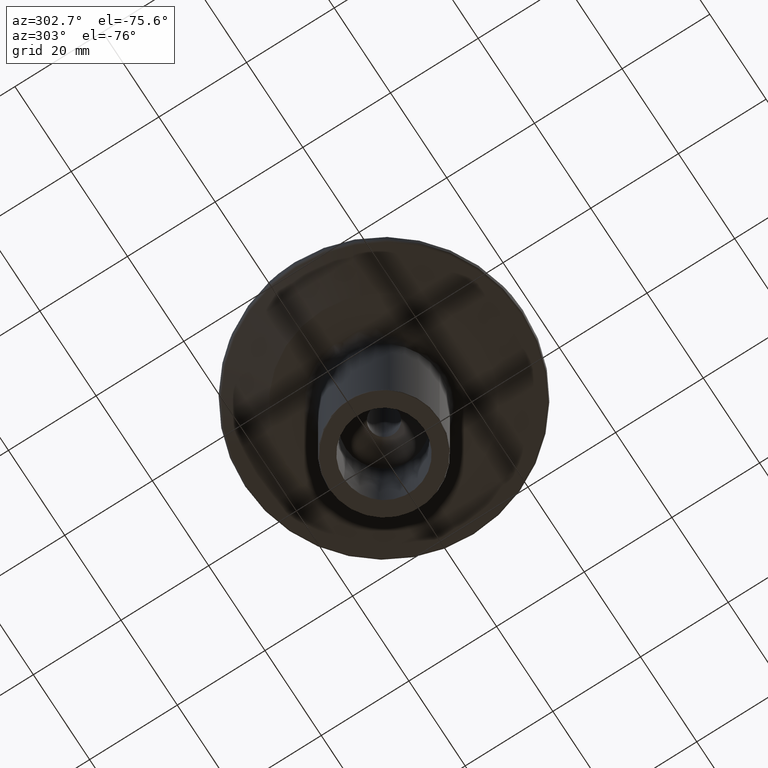
[diagram: clean part render]
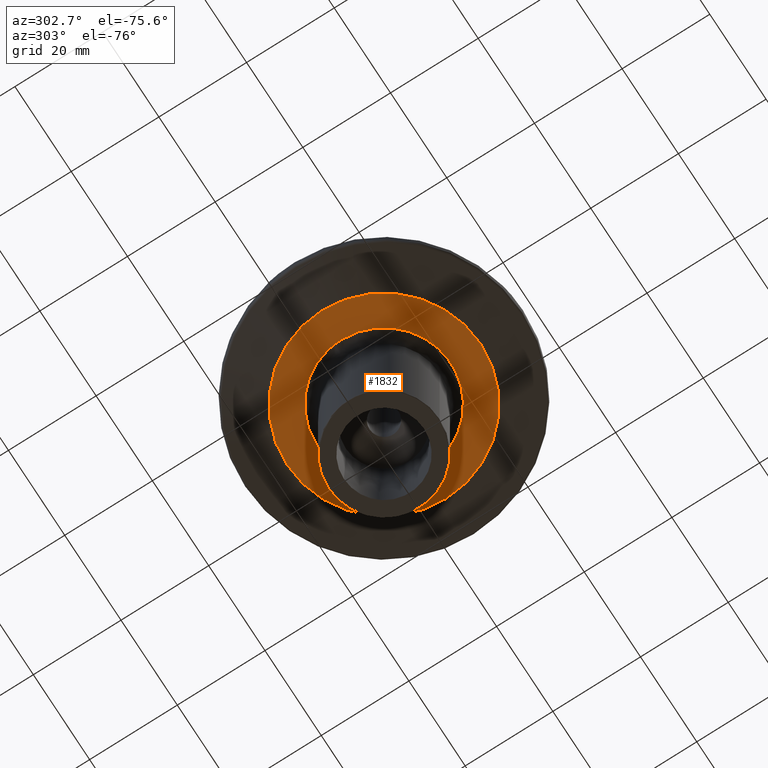
[diagram: same view with one face highlighted and labeled with its STEP entity id]
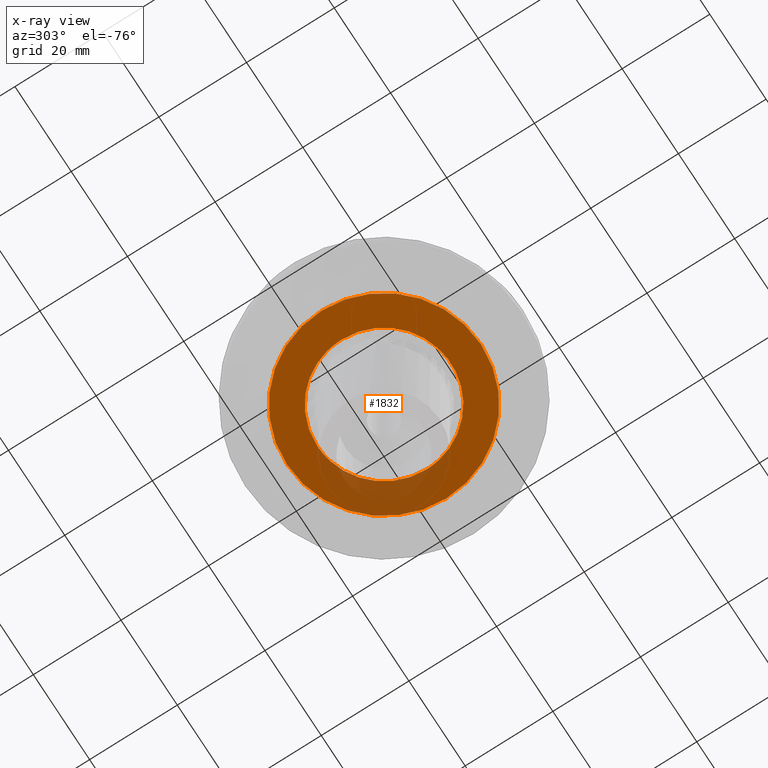
[diagram: x-ray of the same camera — body ghosted, the highlighted face saturated]
A machine part, auxiliary view. The second image highlights one B-rep face of the part: STEP entity #1832.
The next image is the same camera in x-ray: the body ghosted, the highlighted face saturated — about 20% of this face is hidden behind the body in this view.
In plain terms, the highlighted planar face has unit normal (0, 0, -1).
Its self-contained STEP definition (entity closure, byte-faithful):
#25 = CARTESIAN_POINT ( 'NONE',  ( -0.5597782072728204600, -0.2159907770818478800, 1.499999999999999100 ) ) ;
#51 = CARTESIAN_POINT ( 'NONE',  ( 0.5076767829546741100, 0.3197981980411839200, 1.499999999999999600 ) ) ;
#60 = CARTESIAN_POINT ( 'NONE',  ( 0.5587652151374763500, 0.2185927099198708100, 1.499999999999999100 ) ) ;
#66 = CARTESIAN_POINT ( 'NONE',  ( 0.5504157203243629200, 0.2396970855391391800, 1.499999999999999600 ) ) ;
#82 = CARTESIAN_POINT ( 'NONE',  ( 0.5696200264440894900, 0.1889507713051706800, 1.499999999999999600 ) ) ;
#94 = CARTESIAN_POINT ( 'NONE',  ( -0.09157096423425048500, -0.5932549521289787200, 1.499999999999999300 ) ) ;
#98 = CARTESIAN_POINT ( 'NONE',  ( -0.09473327015801585900, 0.5925325979306767000, 1.499999999999999800 ) ) ;
#100 = CARTESIAN_POINT ( 'NONE',  ( 0.2160879718433095000, -0.5597385924216987700, 1.499999999999999600 ) ) ;
#108 = CARTESIAN_POINT ( 'NONE',  ( -0.1179589487615707700, -0.5882992734584160400, 1.499999999999998700 ) ) ;
#109 = B_SPLINE_CURVE_WITH_KNOTS ( 'NONE', 3,
 ( #1979, #1235, #230, #2154, #239, #1568, #1578, #1354, #212, #411, #597, #432, #1772, #984, #25, #1178, #2343, #1954, #1362, #823, #221, #1963, #805, #2161, #995, #2178, #1068, #1266, #290, #1257, #1079, #517, #299, #882, #1441, #1857, #1848, #1640, #1666, #2253, #488, #2048, #1088, #680, #1062, #108, #1838, #1448, #1629, #94, #2236, #2039, #875, #1866, #1650, #2436, #891, #2429, #309, #2445, #1466, #672, #2246, #498, #1272, #127, #117, #316, #1658, #100, #700, #2056, #327, #708, #2031, #2064, #2226, #901, #2262, #2411, #1429, #479, #1828, #2421, #1250, #2278, #364, #1511, #1295, #718, #1280, #924, #2269, #2473, #1103, #909, #1504, #2093, #1699, #1113, #549, #369, #2285, #1677, #1314, #153, #531 ),
 .UNSPECIFIED., .F., .F.,
 ( 4, 1, 1, 1, 1, 2, 2, 1, 1, 1, 1, 2, 2, 1, 1, 1, 2, 2, 2, 1, 1, 1, 2, 2, 1, 1, 1, 1, 2, 2, 1, 1, 1, 1, 2, 2, 1, 1, 1, 2, 2, 1, 1, 1, 1, 2, 2, 1, 1, 1, 1, 2, 2, 1, 1, 1, 2, 2, 2, 1, 1, 1, 2, 2, 1, 1, 1, 1, 2, 2, 1, 1, 1, 1, 2, 2, 4 ),
 ( 0.0000000000000000000, 0.03125000000000164500, 0.04687500000000244900, 0.05468750000000284500, 0.05859375000000303900, 0.06054687500000313600, 0.06250000000000323400, 0.09375000000000477400, 0.1093750000000056200, 0.1171875000000060200, 0.1210937500000062300, 0.1230468750000063100, 0.1250000000000063800, 0.1562500000000068800, 0.1718750000000071600, 0.1796875000000073000, 0.1835937500000073600, 0.1875000000000074100, 0.2500000000000072700, 0.2812500000000072700, 0.2968750000000072700, 0.3046875000000073300, 0.3085937500000073800, 0.3125000000000073800, 0.3437500000000083800, 0.3593750000000088300, 0.3671875000000089900, 0.3710937500000091000, 0.3730468750000091600, 0.3750000000000091600, 0.4062500000000093800, 0.4218750000000095500, 0.4296875000000096000, 0.4335937500000096600, 0.4355468750000097100, 0.4375000000000097700, 0.4687500000000097100, 0.4843750000000097100, 0.4921875000000097700, 0.4960937500000097100, 0.5000000000000096600, 0.5312500000000097700, 0.5468750000000097700, 0.5546875000000097700, 0.5585937500000097700, 0.5605468750000097700, 0.5625000000000097700, 0.5937500000000096600, 0.6093750000000096600, 0.6171875000000096600, 0.6210937500000095500, 0.6230468750000095500, 0.6250000000000095500, 0.6562500000000092100, 0.6718750000000089900, 0.6796875000000089900, 0.6835937500000089900, 0.6875000000000089900, 0.7500000000000085500, 0.7812500000000083300, 0.7968750000000082200, 0.8046875000000081000, 0.8085937500000079900, 0.8125000000000078800, 0.8437500000000068800, 0.8593750000000063300, 0.8671875000000061100, 0.8710937500000060000, 0.8730468750000058800, 0.8750000000000057700, 0.9062500000000045500, 0.9218750000000038900, 0.9296875000000035500, 0.9335937500000034400, 0.9355468750000032200, 0.9375000000000031100, 1.000000000000000000 ),
 .UNSPECIFIED. ) ;
#117 = CARTESIAN_POINT ( 'NONE',  ( 0.1888039935894693100, -0.5696672732008772900, 1.499999999999999300 ) ) ;
#127 = CARTESIAN_POINT ( 'NONE',  ( 0.1565568487937458500, -0.5797862758961904700, 1.499999999999999100 ) ) ;
#153 = CARTESIAN_POINT ( 'NONE',  ( 0.5999999999999998700, -0.03743578780896750900, 1.499999999999999100 ) ) ;
#167 = EDGE_CURVE ( 'NONE', #501, #2355, #430, .T. ) ;
#193 = CARTESIAN_POINT ( 'NONE',  ( -0.6000104177407522600, 6.256180902143630800E-009, 1.499999999999999800 ) ) ;
#212 = CARTESIAN_POINT ( 'NONE',  ( -0.5903191184437087700, -0.1073533131725580000, 1.499999999999999300 ) ) ;
#221 = CARTESIAN_POINT ( 'NONE',  ( -0.5119435124447797600, -0.3129917488998119600, 1.499999999999999100 ) ) ;
#230 = CARTESIAN_POINT ( 'NONE',  ( -0.5987924876296059100, -0.04533732213182951900, 1.499999999999999600 ) ) ;
#239 = CARTESIAN_POINT ( 'NONE',  ( -0.5928181466867441500, -0.09276831025492569800, 1.499999999999999300 ) ) ;
#246 = CARTESIAN_POINT ( 'NONE',  ( 0.4795487002964683400, 0.3629736571224422800, 1.499999999999999300 ) ) ;
#249 = EDGE_CURVE ( 'NONE', #2355, #501, #2238, .T. ) ;
#260 = CARTESIAN_POINT ( 'NONE',  ( 0.5208274444599115800, 0.2981997108503527400, 1.499999999999999800 ) ) ;
#261 = CARTESIAN_POINT ( 'NONE',  ( -0.3131776007941044500, 0.5118255231430433000, 1.499999999999999800 ) ) ;
#270 = CARTESIAN_POINT ( 'NONE',  ( -0.1061409822320426200, 0.5905653791059625200, 1.499999999999999800 ) ) ;
#288 = CARTESIAN_POINT ( 'NONE',  ( -0.3195900246387112800, 0.5078077579360287300, 1.499999999999999800 ) ) ;
#289 = CARTESIAN_POINT ( 'NONE',  ( -0.5864833842380253700, 0.1268102316379931000, 1.499999999999999600 ) ) ;
#290 = CARTESIAN_POINT ( 'NONE',  ( -0.3586139254874926000, -0.4812377916335151600, 1.499999999999998700 ) ) ;
#297 = CARTESIAN_POINT ( 'NONE',  ( 0.2534530878803038500, 0.5440090548431409900, 1.499999999999999800 ) ) ;
#299 = CARTESIAN_POINT ( 'NONE',  ( -0.3310234025119712100, -0.5004321580948930500, 1.499999999999999300 ) ) ;
#303 = ORIENTED_EDGE ( 'NONE', *, *, #2279, .T. ) ;
#306 = CARTESIAN_POINT ( 'NONE',  ( 0.2852152637074134600, 0.5285619207632610300, 1.499999999999999800 ) ) ;
#309 = CARTESIAN_POINT ( 'NONE',  ( 0.07731165231022192600, -0.5951307999163547600, 1.499999999999999300 ) ) ;
#316 = CARTESIAN_POINT ( 'NONE',  ( 0.2047598334833000700, -0.5640170660191117200, 1.499999999999999100 ) ) ;
#327 = CARTESIAN_POINT ( 'NONE',  ( 0.2394783844979904200, -0.5505121025708941100, 1.499999999999999300 ) ) ;
#364 = CARTESIAN_POINT ( 'NONE',  ( 0.4992690938682081700, -0.3327715036550461000, 1.499999999999998700 ) ) ;
#369 = CARTESIAN_POINT ( 'NONE',  ( 0.5887897412801205200, -0.1155586694306324500, 1.499999999999998700 ) ) ;
#385 = EDGE_LOOP ( 'NONE', ( #1040, #858 ) ) ;
#411 = CARTESIAN_POINT ( 'NONE',  ( -0.5865722257061253300, -0.1277273448670130100, 1.499999999999999600 ) ) ;
#417 = AXIS2_PLACEMENT_3D ( 'NONE', #2415, #2217, #1046 ) ;
#430 = CIRCLE ( 'NONE', #1386, 0.8708481161152610300 ) ;
#432 = CARTESIAN_POINT ( 'NONE',  ( -0.5697566654065318000, -0.1885441927388336900, 1.499999999999999100 ) ) ;
#457 = CARTESIAN_POINT ( 'NONE',  ( -0.5827779227977552000, 0.1433148665414784600, 1.499999999999999600 ) ) ;
#459 = CARTESIAN_POINT ( 'NONE',  ( -0.5509144563087038400, 0.2377799236205622700, 1.499999999999999600 ) ) ;
#463 = CARTESIAN_POINT ( 'NONE',  ( -0.1575419708353278100, 0.5795173944051617000, 1.499999999999999600 ) ) ;
#464 = CARTESIAN_POINT ( 'NONE',  ( -0.5888885815153853700, 0.1149498369795481200, 1.499999999999999600 ) ) ;
#479 = CARTESIAN_POINT ( 'NONE',  ( 0.4387749485500964700, -0.4097643727551523200, 1.499999999999999100 ) ) ;
#486 = CARTESIAN_POINT ( 'NONE',  ( -0.3259247450612962600, 0.5037653473941519100, 1.499999999999999600 ) ) ;
#488 = CARTESIAN_POINT ( 'NONE',  ( -0.2227148844708636000, -0.5571369991993990700, 1.499999999999999300 ) ) ;
#496 = CARTESIAN_POINT ( 'NONE',  ( 0.1752591292352110600, 0.5744144305052912800, 1.499999999999999800 ) ) ;
#498 = CARTESIAN_POINT ( 'NONE',  ( 0.1080838151936820100, -0.5901871576545620900, 1.499999999999999300 ) ) ;
#501 = VERTEX_POINT ( 'NONE', #1992 ) ;
#506 = CARTESIAN_POINT ( 'NONE',  ( 0.2372592175982212400, 0.5511389187759951900, 1.499999999999999800 ) ) ;
#517 = CARTESIAN_POINT ( 'NONE',  ( -0.3332239737889538000, -0.4989697845775967800, 1.499999999999999300 ) ) ;
#531 = CARTESIAN_POINT ( 'NONE',  ( 0.5999999999999997600, -1.128113335985054300E-015, 1.499999999999999800 ) ) ;
#549 = CARTESIAN_POINT ( 'NONE',  ( 0.5880901439585631800, -0.1190982367330774000, 1.499999999999999300 ) ) ;
#588 = CARTESIAN_POINT ( 'NONE',  ( 0.5999999999999997600, -1.128113335985054300E-015, 1.499999999999999800 ) ) ;
#597 = CARTESIAN_POINT ( 'NONE',  ( -0.5799153943658758000, -0.1561067553048812200, 1.499999999999999100 ) ) ;
#625 = CARTESIAN_POINT ( 'NONE',  ( -0.5437658716834857800, 0.2539740463869583600, 1.499999999999999300 ) ) ;
#629 = CARTESIAN_POINT ( 'NONE',  ( 0.4096304037713431300, 0.4388997910973553300, 1.499999999999999600 ) ) ;
#639 = CARTESIAN_POINT ( 'NONE',  ( 0.5864460354723636200, 0.1282991766435922800, 1.499999999999999600 ) ) ;
#640 = CARTESIAN_POINT ( 'NONE',  ( -0.3627191713296530900, 0.4797381729866351800, 1.499999999999999800 ) ) ;
#647 = CARTESIAN_POINT ( 'NONE',  ( 0.5902042951485427800, 0.1079827473725186000, 1.500000000000000200 ) ) ;
#648 = CARTESIAN_POINT ( 'NONE',  ( -0.1083347444545522100, 0.5901664808899562700, 1.499999999999999800 ) ) ;
#657 = CARTESIAN_POINT ( 'NONE',  ( 0.5903973261692985200, 0.1069213456829109000, 1.500000000000000400 ) ) ;
#664 = CARTESIAN_POINT ( 'NONE',  ( -0.2187280812015625600, 0.5587141434150517700, 1.499999999999999800 ) ) ;
#670 = CARTESIAN_POINT ( 'NONE',  ( 0.1139595065675679300, 0.5890793886881923200, 1.499999999999999600 ) ) ;
#672 = CARTESIAN_POINT ( 'NONE',  ( 0.1047175437010270000, -0.5907938667950718400, 1.499999999999999300 ) ) ;
#674 = CARTESIAN_POINT ( 'NONE',  ( -0.5282781014478639100, 0.2857402373125403300, 1.499999999999999100 ) ) ;
#677 = CARTESIAN_POINT ( 'NONE',  ( 0.3326516931403859500, 0.4993489348151440900, 1.499999999999999800 ) ) ;
#680 = CARTESIAN_POINT ( 'NONE',  ( -0.1429394908779420300, -0.5828707569397937300, 1.499999999999999300 ) ) ;
#700 = CARTESIAN_POINT ( 'NONE',  ( 0.2183474093871864400, -0.5588610978440528000, 1.499999999999999300 ) ) ;
#708 = CARTESIAN_POINT ( 'NONE',  ( 0.2670909301731104700, -0.5379503886632329700, 1.499999999999999100 ) ) ;
#718 = CARTESIAN_POINT ( 'NONE',  ( 0.5284416699778536900, -0.2854334795086839700, 1.499999999999999600 ) ) ;
#805 = CARTESIAN_POINT ( 'NONE',  ( -0.5052060543124750100, -0.3236910652561498200, 1.499999999999999300 ) ) ;
#812 = CARTESIAN_POINT ( 'NONE',  ( 0.0000000000000000000, 0.4999999999999989500, 1.499999999999999800 ) ) ;
#823 = CARTESIAN_POINT ( 'NONE',  ( -0.5210381922306692700, -0.2978390534550658900, 1.499999999999999800 ) ) ;
#835 = CARTESIAN_POINT ( 'NONE',  ( 0.5639449667924112400, 0.2049593806519186800, 1.499999999999999600 ) ) ;
#837 = CARTESIAN_POINT ( 'NONE',  ( -0.4386090258787337400, 0.4099441967028488200, 1.500000000000000400 ) ) ;
#842 = CARTESIAN_POINT ( 'NONE',  ( 0.5913983519302578000, 0.1012771225401733900, 1.499999999999999600 ) ) ;
#858 = ORIENTED_EDGE ( 'NONE', *, *, #167, .F. ) ;
#864 = CARTESIAN_POINT ( 'NONE',  ( 0.1103050695300156800, 0.5897745381551509100, 1.499999999999999800 ) ) ;
#873 = CARTESIAN_POINT ( 'NONE',  ( 0.2219867479591084400, 0.5574255638583061100, 1.499999999999999800 ) ) ;
#875 = CARTESIAN_POINT ( 'NONE',  ( -0.01692519230671610300, -0.5998163156895818200, 1.499999999999999100 ) ) ;
#882 = CARTESIAN_POINT ( 'NONE',  ( -0.3119664347320992800, -0.5129251098987119800, 1.499999999999998700 ) ) ;
#888 = CARTESIAN_POINT ( 'NONE',  ( 0.3113675891528407400, 0.5132859666133547900, 1.499999999999999600 ) ) ;
#889 = VERTEX_POINT ( 'NONE', #193 ) ;
#891 = CARTESIAN_POINT ( 'NONE',  ( 0.01751421786717463600, -0.6000447637657182500, 1.499999999999999300 ) ) ;
#898 = CARTESIAN_POINT ( 'NONE',  ( 0.1258735092290523500, 0.5866839327317739900, 1.499999999999999800 ) ) ;
#901 = CARTESIAN_POINT ( 'NONE',  ( 0.3239972722859719200, -0.5050095457989397500, 1.499999999999998700 ) ) ;
#909 = CARTESIAN_POINT ( 'NONE',  ( 0.5572825020858904700, -0.2223509660986290000, 1.499999999999999600 ) ) ;
#923 = ORIENTED_EDGE ( 'NONE', *, *, #940, .T. ) ;
#924 = CARTESIAN_POINT ( 'NONE',  ( 0.5509959755081352800, -0.2375948636004136200, 1.499999999999999300 ) ) ;
#940 = EDGE_CURVE ( 'NONE', #889, #1953, #109, .T. ) ;
#984 = CARTESIAN_POINT ( 'NONE',  ( -0.5610909324305629600, -0.2125783256139903400, 1.499999999999999300 ) ) ;
#995 = CARTESIAN_POINT ( 'NONE',  ( -0.4798374390654603900, -0.3625849577771154100, 1.499999999999999300 ) ) ;
#997 = FACE_OUTER_BOUND ( 'NONE', #385, .T. ) ;
#1000 = DIRECTION ( 'NONE',  ( 0.0000000000000000000, 1.000000000000000000, 7.970568263867499800E-016 ) ) ;
#1027 = CARTESIAN_POINT ( 'NONE',  ( -0.4812950858534275100, 0.3585414993995526000, 1.499999999999999800 ) ) ;
#1040 = ORIENTED_EDGE ( 'NONE', *, *, #249, .F. ) ;
#1041 = CARTESIAN_POINT ( 'NONE',  ( -0.2164912609437741300, 0.5595849053097498000, 1.499999999999999800 ) ) ;
#1042 = CARTESIAN_POINT ( 'NONE',  ( -0.5881890778920881900, 0.1185144717434948600, 1.499999999999999300 ) ) ;
#1046 = DIRECTION ( 'NONE',  ( 0.0000000000000000000, -1.000000000000000000, -6.273994151473113000E-016 ) ) ;
#1050 = CARTESIAN_POINT ( 'NONE',  ( -0.2672238334386438100, 0.5378760567998548400, 1.499999999999999600 ) ) ;
#1062 = CARTESIAN_POINT ( 'NONE',  ( -0.1263148235207802200, -0.5865892826673376700, 1.499999999999999100 ) ) ;
#1066 = CARTESIAN_POINT ( 'NONE',  ( 0.3433550584346170000, 0.4920929119116414000, 1.500000000000000200 ) ) ;
#1068 = CARTESIAN_POINT ( 'NONE',  ( -0.4100638451743794900, -0.4384938270837757700, 1.499999999999999300 ) ) ;
#1079 = CARTESIAN_POINT ( 'NONE',  ( -0.3375102642273090600, -0.4960807879183352100, 1.499999999999998700 ) ) ;
#1085 = CARTESIAN_POINT ( 'NONE',  ( 0.1115702346622015800, 0.5895365987022643800, 1.499999999999999600 ) ) ;
#1088 = CARTESIAN_POINT ( 'NONE',  ( -0.1758404969472376600, -0.5742395289031503300, 1.499999999999999100 ) ) ;
#1103 = CARTESIAN_POINT ( 'NONE',  ( 0.5567889726160710800, -0.2235841172519205400, 1.499999999999999600 ) ) ;
#1113 = CARTESIAN_POINT ( 'NONE',  ( 0.5863854451007075600, -0.1273356211854402000, 1.499999999999999300 ) ) ;
#1178 = CARTESIAN_POINT ( 'NONE',  ( -0.5588959368529886600, -0.2182637450998732600, 1.499999999999999300 ) ) ;
#1184 = CARTESIAN_POINT ( 'NONE',  ( -2.069473643709773200E-017, 0.5999999999999984200, 1.500000000000000400 ) ) ;
#1189 = VERTEX_POINT ( 'NONE', #1184 ) ;
#1209 = CARTESIAN_POINT ( 'NONE',  ( 0.5609585895278435000, 0.2129219987272148500, 1.500000000000000200 ) ) ;
#1216 = CARTESIAN_POINT ( 'NONE',  ( -0.4961141672757734000, 0.3374627611648304300, 1.500000000000000200 ) ) ;
#1235 = CARTESIAN_POINT ( 'NONE',  ( -0.6000224365881109400, -0.01815333833484839700, 1.499999999999999300 ) ) ;
#1242 = CARTESIAN_POINT ( 'NONE',  ( -0.6000389209739005500, 0.03687687514182285500, 1.500000000000000900 ) ) ;
#1250 = CARTESIAN_POINT ( 'NONE',  ( 0.4920095762302838500, -0.3434742900611004700, 1.499999999999999300 ) ) ;
#1257 = CARTESIAN_POINT ( 'NONE',  ( -0.3439079781817847600, -0.4917087755434583200, 1.499999999999999600 ) ) ;
#1266 = CARTESIAN_POINT ( 'NONE',  ( -0.3871376124133001900, -0.4592173370060426100, 1.499999999999998700 ) ) ;
#1272 = CARTESIAN_POINT ( 'NONE',  ( 0.1283413560978772500, -0.5864344296323719100, 1.499999999999999300 ) ) ;
#1276 = EDGE_LOOP ( 'NONE', ( #1895, #923, #303 ) ) ;
#1280 = CARTESIAN_POINT ( 'NONE',  ( 0.5438720471829794300, -0.2537484628597460000, 1.499999999999999600 ) ) ;
#1281 = B_SPLINE_CURVE_WITH_KNOTS ( 'NONE', 3,
 ( #2393, #1427, #1420, #1414, #98, #1826, #270, #648, #1610, #463, #2225, #2012, #1810, #1041, #664, #2022, #1638, #1050, #2410, #261, #288, #1439, #486, #640, #1997, #837, #2194, #1027, #2384, #1216, #1406, #1602, #2454, #674, #625, #459, #1632, #1875, #2470, #1736, #2030, #1428, #457, #289, #1042, #464, #2195, #2399, #1811, #1242, #1628 ),
 .UNSPECIFIED., .F., .F.,
 ( 4, 1, 1, 1, 2, 2, 1, 1, 1, 1, 2, 2, 1, 1, 1, 2, 2, 2, 1, 1, 1, 2, 2, 1, 1, 1, 1, 2, 2, 1, 1, 1, 1, 2, 2, 4 ),
 ( 0.0000000000000000000, 0.06250000000000045800, 0.09375000000000069400, 0.1093750000000007900, 0.1171875000000008600, 0.1250000000000009200, 0.1875000000000013900, 0.2187500000000016700, 0.2343750000000018000, 0.2421875000000018600, 0.2460937500000018900, 0.2500000000000019400, 0.3125000000000017800, 0.3437500000000017200, 0.3593750000000017200, 0.3671875000000017200, 0.3750000000000017200, 0.5000000000000022200, 0.5625000000000023300, 0.5937500000000023300, 0.6093750000000022200, 0.6171875000000022200, 0.6250000000000021100, 0.6875000000000006700, 0.7187499999999998900, 0.7343749999999995600, 0.7421874999999994400, 0.7460937499999994400, 0.7499999999999994400, 0.8124999999999994400, 0.8437499999999994400, 0.8593749999999994400, 0.8671874999999993300, 0.8710937499999993300, 0.8749999999999994400, 1.000000000000000000 ),
 .UNSPECIFIED. ) ;
#1295 = CARTESIAN_POINT ( 'NONE',  ( 0.5131884542794932200, -0.3115254677168117800, 1.499999999999999300 ) ) ;
#1314 = CARTESIAN_POINT ( 'NONE',  ( 0.5965661453354487200, -0.07437980260475823800, 1.499999999999998700 ) ) ;
#1333 = CARTESIAN_POINT ( 'NONE',  ( 0.0000000000000000000, -1.263598485751077800E-015, 1.499999999999999800 ) ) ;
#1350 = DIRECTION ( 'NONE',  ( 0.0000000000000000000, -1.000000000000000000, -6.273994151473113000E-016 ) ) ;
#1354 = CARTESIAN_POINT ( 'NONE',  ( -0.5905099531017826700, -0.1062978426170520800, 1.499999999999999300 ) ) ;
#1362 = CARTESIAN_POINT ( 'NONE',  ( -0.5380354520400813000, -0.2669207712271981500, 1.499999999999999600 ) ) ;
#1386 = AXIS2_PLACEMENT_3D ( 'NONE', #1333, #1960, #1350 ) ;
#1395 = CARTESIAN_POINT ( 'NONE',  ( 0.5908016492779595300, 0.1046640002808782300, 1.500000000000000200 ) ) ;
#1405 = CARTESIAN_POINT ( 'NONE',  ( 0.5378633158512593500, 0.2672609086773942200, 1.499999999999999600 ) ) ;
#1406 = CARTESIAN_POINT ( 'NONE',  ( -0.4989982990230906700, 0.3331817923148454000, 1.500000000000000400 ) ) ;
#1414 = CARTESIAN_POINT ( 'NONE',  ( -0.07871872481231222100, 0.5949682021898463600, 1.500000000000000400 ) ) ;
#1420 = CARTESIAN_POINT ( 'NONE',  ( -0.04653522785478848800, 0.5987152856654919300, 1.500000000000000200 ) ) ;
#1426 = CARTESIAN_POINT ( 'NONE',  ( 0.2232130571731087100, 0.5569357094295686000, 1.499999999999999600 ) ) ;
#1427 = CARTESIAN_POINT ( 'NONE',  ( -0.01868467686356855400, 0.5999999999999990900, 1.499999999999999800 ) ) ;
#1428 = CARTESIAN_POINT ( 'NONE',  ( -0.5741907033886383100, 0.1759765968064056800, 1.499999999999999600 ) ) ;
#1429 = CARTESIAN_POINT ( 'NONE',  ( 0.3948194384828381800, -0.4536943563527932600, 1.499999999999999100 ) ) ;
#1438 = CARTESIAN_POINT ( 'NONE',  ( 0.3304456348908634300, 0.5008112242459208400, 1.499999999999999800 ) ) ;
#1439 = CARTESIAN_POINT ( 'NONE',  ( -0.3238504595767048900, 0.5051010325219332800, 1.499999999999999600 ) ) ;
#1441 = CARTESIAN_POINT ( 'NONE',  ( -0.2858462088690321700, -0.5282246391060221300, 1.499999999999998400 ) ) ;
#1448 = CARTESIAN_POINT ( 'NONE',  ( -0.1119728430199763300, -0.5894602758035717400, 1.499999999999999800 ) ) ;
#1464 = CARTESIAN_POINT ( 'NONE',  ( 0.1424522847876287500, 0.5829893715349419000, 1.499999999999999800 ) ) ;
#1466 = CARTESIAN_POINT ( 'NONE',  ( 0.1012974988717628800, -0.5913970209040418900, 1.499999999999998400 ) ) ;
#1485 = EDGE_CURVE ( 'NONE', #1189, #889, #1281, .T. ) ;
#1504 = CARTESIAN_POINT ( 'NONE',  ( 0.5648173819810882200, -0.2033603389585181600, 1.499999999999999300 ) ) ;
#1511 = CARTESIAN_POINT ( 'NONE',  ( 0.5007349534587393100, -0.3305611601274265300, 1.499999999999999300 ) ) ;
#1535 = CARTESIAN_POINT ( 'NONE',  ( 0.0000000000000000000, -0.8708481161152622500, 1.499999999999999300 ) ) ;
#1568 = CARTESIAN_POINT ( 'NONE',  ( -0.5915039290074775000, -0.1006617263153067200, 1.499999999999999300 ) ) ;
#1578 = CARTESIAN_POINT ( 'NONE',  ( -0.5909114433929030200, -0.1040435399570903300, 1.499999999999999100 ) ) ;
#1586 = CARTESIAN_POINT ( 'NONE',  ( 0.4535313985930948800, 0.3949926239410758200, 1.499999999999999600 ) ) ;
#1601 = CARTESIAN_POINT ( 'NONE',  ( 0.5117116588877227400, 0.3133643640647473800, 1.499999999999999800 ) ) ;
#1602 = CARTESIAN_POINT ( 'NONE',  ( -0.5004541280087136900, 0.3309901702159577200, 1.500000000000000400 ) ) ;
#1609 = CARTESIAN_POINT ( 'NONE',  ( 0.5036128446333604200, 0.3261603642128754200, 1.499999999999999800 ) ) ;
#1610 = CARTESIAN_POINT ( 'NONE',  ( -0.1295891650987092700, 0.5861687207958322700, 1.499999999999999800 ) ) ;
#1618 = CARTESIAN_POINT ( 'NONE',  ( 0.5797793662376172800, 0.1566000598270503300, 1.499999999999999300 ) ) ;
#1628 = CARTESIAN_POINT ( 'NONE',  ( -0.6000104177407522600, 6.256180902143630800E-009, 1.499999999999999800 ) ) ;
#1629 = CARTESIAN_POINT ( 'NONE',  ( -0.1106992392640897400, -0.5897006743722009700, 1.499999999999999300 ) ) ;
#1632 = CARTESIAN_POINT ( 'NONE',  ( -0.5543399234981646300, 0.2296051054114629200, 1.499999999999999300 ) ) ;
#1638 = CARTESIAN_POINT ( 'NONE',  ( -0.2397453373004246600, 0.5503919928411297200, 1.500000000000000400 ) ) ;
#1640 = CARTESIAN_POINT ( 'NONE',  ( -0.2297958644763123900, -0.5542635799856899800, 1.499999999999998700 ) ) ;
#1648 = CARTESIAN_POINT ( 'NONE',  ( -2.069473643709773200E-017, 0.5999999999999984200, 1.500000000000000400 ) ) ;
#1650 = CARTESIAN_POINT ( 'NONE',  ( -0.005572352925110345100, -0.6000003884941898000, 1.499999999999999800 ) ) ;
#1656 = CARTESIAN_POINT ( 'NONE',  ( 0.2255637032096596000, 0.5559878363804807700, 1.499999999999999600 ) ) ;
#1658 = CARTESIAN_POINT ( 'NONE',  ( 0.2126958203042078100, -0.5610442859697017900, 1.499999999999999100 ) ) ;
#1666 = CARTESIAN_POINT ( 'NONE',  ( -0.2262808979852592200, -0.5556986907155087000, 1.499999999999999100 ) ) ;
#1673 = CARTESIAN_POINT ( 'NONE',  ( 0.5999999999999997600, -1.128113335985054300E-015, 1.499999999999999800 ) ) ;
#1677 = CARTESIAN_POINT ( 'NONE',  ( 0.5894838200898113700, -0.1119711769430766100, 1.499999999999999600 ) ) ;
#1699 = CARTESIAN_POINT ( 'NONE',  ( 0.5826868269547799100, -0.1437239664101326600, 1.499999999999999300 ) ) ;
#1722 = PLANE ( 'NONE',  #2102 ) ;
#1736 = CARTESIAN_POINT ( 'NONE',  ( -0.5572194522303703900, 0.2225035659300286500, 1.499999999999999600 ) ) ;
#1767 = DIRECTION ( 'NONE',  ( 0.0000000000000000000, 7.970568263867499800E-016, -1.000000000000000000 ) ) ;
#1772 = CARTESIAN_POINT ( 'NONE',  ( -0.5640791944945966500, -0.2045949427699201300, 1.499999999999999600 ) ) ;
#1791 = CARTESIAN_POINT ( 'NONE',  ( 0.5927221840441000400, 0.09336839034827007500, 1.499999999999999800 ) ) ;
#1800 = CARTESIAN_POINT ( 'NONE',  ( 0.5987479026312431100, 0.04574750821628237300, 1.499999999999999100 ) ) ;
#1810 = CARTESIAN_POINT ( 'NONE',  ( -0.2131330116368654300, 0.5608807279986824900, 1.499999999999999800 ) ) ;
#1811 = CARTESIAN_POINT ( 'NONE',  ( -0.5966343640054619900, 0.07360678927524458300, 1.499999999999999600 ) ) ;
#1826 = CARTESIAN_POINT ( 'NONE',  ( -0.1015801032062335500, 0.5913683255650297200, 1.499999999999999600 ) ) ;
#1828 = CARTESIAN_POINT ( 'NONE',  ( 0.4595132715558043500, -0.3867866746772271000, 1.499999999999999100 ) ) ;
#1832 = ADVANCED_FACE ( 'NONE', ( #997, #2060 ), #1722, .T. ) ;
#1836 = CARTESIAN_POINT ( 'NONE',  ( 0.3369457521128241800, 0.4964619648667015200, 1.500000000000000200 ) ) ;
#1838 = CARTESIAN_POINT ( 'NONE',  ( -0.1143685293474891600, -0.5890001397818719300, 1.499999999999999100 ) ) ;
#1848 = CARTESIAN_POINT ( 'NONE',  ( -0.2379585736708317300, -0.5508407368839427500, 1.499999999999998700 ) ) ;
#1857 = CARTESIAN_POINT ( 'NONE',  ( -0.2541284749214541800, -0.5436980450851001100, 1.499999999999999100 ) ) ;
#1866 = CARTESIAN_POINT ( 'NONE',  ( -0.01011431245647481100, -0.5999423240973834600, 1.499999999999999300 ) ) ;
#1875 = CARTESIAN_POINT ( 'NONE',  ( -0.5557760897672589000, 0.2260849497162986400, 1.499999999999999600 ) ) ;
#1895 = ORIENTED_EDGE ( 'NONE', *, *, #1485, .T. ) ;
#1944 = CARTESIAN_POINT ( 'NONE',  ( 0.6000000000000002000, 0.01834301673449734500, 1.500000000000000200 ) ) ;
#1953 = VERTEX_POINT ( 'NONE', #1673 ) ;
#1954 = CARTESIAN_POINT ( 'NONE',  ( -0.5505609322840915300, -0.2393687155946694300, 1.499999999999999100 ) ) ;
#1960 = DIRECTION ( 'NONE',  ( 0.0000000000000000000, -7.751176745541730800E-016, 1.000000000000000000 ) ) ;
#1963 = CARTESIAN_POINT ( 'NONE',  ( -0.5079180675620022000, -0.3194200943041627900, 1.499999999999999300 ) ) ;
#1979 = CARTESIAN_POINT ( 'NONE',  ( -0.6000104177407522600, 6.256180902143630800E-009, 1.499999999999999800 ) ) ;
#1988 = CARTESIAN_POINT ( 'NONE',  ( 0.3866628779807996200, 0.4596182376388330800, 1.499999999999999800 ) ) ;
#1992 = CARTESIAN_POINT ( 'NONE',  ( 1.288572516871876600E-016, 0.8708481161152598100, 1.500000000000000400 ) ) ;
#1997 = CARTESIAN_POINT ( 'NONE',  ( -0.3947457567255556200, 0.4537417477108726100, 1.500000000000000200 ) ) ;
#2004 = CARTESIAN_POINT ( 'NONE',  ( 0.5049583966242363600, 0.3240729088887091000, 1.499999999999999600 ) ) ;
#2012 = CARTESIAN_POINT ( 'NONE',  ( -0.2052759641458300800, 0.5638320732010669900, 1.500000000000000200 ) ) ;
#2022 = CARTESIAN_POINT ( 'NONE',  ( -0.2197879166165437900, 0.5582981281501227000, 1.499999999999999600 ) ) ;
#2024 = B_SPLINE_CURVE_WITH_KNOTS ( 'NONE', 3,
 ( #588, #1944, #1800, #2218, #1791, #842, #1395, #657, #647, #639, #1618, #82, #835, #1209, #2193, #60, #2369, #66, #1405, #260, #1601, #51, #2004, #1609, #246, #1586, #629, #1988, #2187, #1066, #1836, #677, #1438, #888, #306, #297, #506, #2062, #1656, #1426, #873, #2029, #496, #1464, #898, #2234, #670, #1085, #864, #2252, #2443, #1648 ),
 .UNSPECIFIED., .F., .F.,
 ( 4, 1, 1, 1, 1, 2, 2, 1, 1, 1, 1, 2, 2, 1, 1, 1, 2, 2, 2, 1, 1, 1, 2, 2, 1, 1, 1, 1, 2, 2, 1, 1, 1, 1, 2, 2, 4 ),
 ( 0.0000000000000000000, 0.06249999999999839000, 0.09374999999999758500, 0.1093749999999972200, 0.1171874999999970600, 0.1210937499999969600, 0.1249999999999968600, 0.1874999999999950300, 0.2187499999999940000, 0.2343749999999934800, 0.2421874999999932000, 0.2460937499999931200, 0.2499999999999930100, 0.3124999999999937800, 0.3437499999999941200, 0.3593749999999943900, 0.3671874999999944500, 0.3749999999999944500, 0.4999999999999952300, 0.5624999999999954500, 0.5937499999999955600, 0.6093749999999957800, 0.6171874999999957800, 0.6249999999999957800, 0.6874999999999960000, 0.7187499999999962300, 0.7343749999999964500, 0.7421874999999964500, 0.7460937499999964500, 0.7499999999999964500, 0.8124999999999973400, 0.8437499999999977800, 0.8593749999999981100, 0.8671874999999982200, 0.8710937499999982200, 0.8749999999999982200, 1.000000000000000000 ),
 .UNSPECIFIED. ) ;
#2029 = CARTESIAN_POINT ( 'NONE',  ( 0.2027780701853029700, 0.5650316491038999100, 1.499999999999999800 ) ) ;
#2030 = CARTESIAN_POINT ( 'NONE',  ( -0.5648137212746923200, 0.2033765835328398600, 1.499999999999999800 ) ) ;
#2031 = CARTESIAN_POINT ( 'NONE',  ( 0.2980818731512337400, -0.5208970564223016600, 1.499999999999998700 ) ) ;
#2039 = CARTESIAN_POINT ( 'NONE',  ( -0.03280282916297430600, -0.5992499133832317500, 1.499999999999999100 ) ) ;
#2048 = CARTESIAN_POINT ( 'NONE',  ( -0.2034442244723002900, -0.5647941735890779100, 1.499999999999999800 ) ) ;
#2056 = CARTESIAN_POINT ( 'NONE',  ( 0.2194241934083887300, -0.5584393644715056600, 1.499999999999999300 ) ) ;
#2060 = FACE_BOUND ( 'NONE', #1276, .T. ) ;
#2062 = CARTESIAN_POINT ( 'NONE',  ( 0.2290840868650478300, 0.5545554249656505800, 1.500000000000000400 ) ) ;
#2064 = CARTESIAN_POINT ( 'NONE',  ( 0.3132714212295825100, -0.5117708904646711700, 1.499999999999999100 ) ) ;
#2093 = CARTESIAN_POINT ( 'NONE',  ( 0.5741327089420557000, -0.1761549621393859500, 1.499999999999999100 ) ) ;
#2102 = AXIS2_PLACEMENT_3D ( 'NONE', #812, #1767, #1000 ) ;
#2154 = CARTESIAN_POINT ( 'NONE',  ( -0.5951735870263152900, -0.07697140788261942800, 1.499999999999999800 ) ) ;
#2161 = CARTESIAN_POINT ( 'NONE',  ( -0.5038648427593083200, -0.3257748465726820800, 1.499999999999999100 ) ) ;
#2178 = CARTESIAN_POINT ( 'NONE',  ( -0.4538861217008626800, -0.3945816945361877400, 1.499999999999999600 ) ) ;
#2187 = CARTESIAN_POINT ( 'NONE',  ( 0.3580876315607474100, 0.4816282687897317500, 1.499999999999999800 ) ) ;
#2193 = CARTESIAN_POINT ( 'NONE',  ( 0.5596468176775869500, 0.2163256164884678200, 1.499999999999999600 ) ) ;
#2194 = CARTESIAN_POINT ( 'NONE',  ( -0.4593068353639396800, 0.3870355445065972700, 1.499999999999999600 ) ) ;
#2195 = CARTESIAN_POINT ( 'NONE',  ( -0.5893479154991991800, 0.1125713451158333000, 1.499999999999999800 ) ) ;
#2217 = DIRECTION ( 'NONE',  ( 0.0000000000000000000, -7.751176745541730800E-016, 1.000000000000000000 ) ) ;
#2218 = CARTESIAN_POINT ( 'NONE',  ( 0.5950959519723685300, 0.07752685611009664500, 1.499999999999999800 ) ) ;
#2225 = CARTESIAN_POINT ( 'NONE',  ( -0.1894773393974322800, 0.5694457993186624600, 1.499999999999999800 ) ) ;
#2226 = CARTESIAN_POINT ( 'NONE',  ( 0.3197156725322936600, -0.5077312122320085700, 1.499999999999999300 ) ) ;
#2234 = CARTESIAN_POINT ( 'NONE',  ( 0.1175402831160677300, 0.5883829860006916100, 1.500000000000000200 ) ) ;
#2236 = CARTESIAN_POINT ( 'NONE',  ( -0.06450043836493973800, -0.5970275780179440400, 1.499999999999999100 ) ) ;
#2238 = CIRCLE ( 'NONE', #417, 0.8708481161152610300 ) ;
#2246 = CARTESIAN_POINT ( 'NONE',  ( 0.1069969540939147100, -0.5903851205217381900, 1.499999999999999100 ) ) ;
#2252 = CARTESIAN_POINT ( 'NONE',  ( 0.07310621279991914900, 0.5966610736833141100, 1.499999999999999800 ) ) ;
#2253 = CARTESIAN_POINT ( 'NONE',  ( -0.2239338842022141300, -0.5566483596402607100, 1.499999999999999300 ) ) ;
#2262 = CARTESIAN_POINT ( 'NONE',  ( 0.3260924583684399200, -0.5036594853525138100, 1.499999999999999300 ) ) ;
#2269 = CARTESIAN_POINT ( 'NONE',  ( 0.5544101246013613000, -0.2294402912370312500, 1.499999999999999300 ) ) ;
#2278 = CARTESIAN_POINT ( 'NONE',  ( 0.4963807797133874500, -0.3370652770459565700, 1.499999999999999100 ) ) ;
#2279 = EDGE_CURVE ( 'NONE', #1953, #1189, #2024, .T. ) ;
#2285 = CARTESIAN_POINT ( 'NONE',  ( 0.5892492532937730900, -0.1131969001890018000, 1.499999999999999600 ) ) ;
#2343 = CARTESIAN_POINT ( 'NONE',  ( -0.5584681143159687700, -0.2193565260572298000, 1.499999999999999100 ) ) ;
#2355 = VERTEX_POINT ( 'NONE', #1535 ) ;
#2369 = CARTESIAN_POINT ( 'NONE',  ( 0.5583390594070250000, 0.2196793094994997100, 1.499999999999999600 ) ) ;
#2384 = CARTESIAN_POINT ( 'NONE',  ( -0.4917494126206916600, 0.3438526557931752500, 1.500000000000000200 ) ) ;
#2393 = CARTESIAN_POINT ( 'NONE',  ( -2.069473643709773200E-017, 0.5999999999999984200, 1.500000000000000400 ) ) ;
#2399 = CARTESIAN_POINT ( 'NONE',  ( -0.5895830712988732200, 0.1113329677500322100, 1.499999999999999800 ) ) ;
#2410 = CARTESIAN_POINT ( 'NONE',  ( -0.2980628784267053100, 0.5209040482271785100, 1.499999999999999600 ) ) ;
#2411 = CARTESIAN_POINT ( 'NONE',  ( 0.3628900123517221400, -0.4796142194916011000, 1.499999999999999100 ) ) ;
#2415 = CARTESIAN_POINT ( 'NONE',  ( 0.0000000000000000000, -1.263598485751077800E-015, 1.499999999999999800 ) ) ;
#2421 = CARTESIAN_POINT ( 'NONE',  ( 0.4815389756802677700, -0.3582071242645482600, 1.499999999999999600 ) ) ;
#2429 = CARTESIAN_POINT ( 'NONE',  ( 0.04520910287698732400, -0.5988070392648255900, 1.499999999999999100 ) ) ;
#2436 = CARTESIAN_POINT ( 'NONE',  ( -0.003346152923704921000, -0.6000163882424888200, 1.499999999999999300 ) ) ;
#2443 = CARTESIAN_POINT ( 'NONE',  ( 0.03671360231749122600, 0.5999999999999989800, 1.499999999999999600 ) ) ;
#2445 = CARTESIAN_POINT ( 'NONE',  ( 0.09331088959061929800, -0.5927346233844280600, 1.499999999999998700 ) ) ;
#2454 = CARTESIAN_POINT ( 'NONE',  ( -0.5129618395570119100, 0.3119020216363919700, 1.499999999999999800 ) ) ;
#2470 = CARTESIAN_POINT ( 'NONE',  ( -0.5567264470360289200, 0.2237344765468604300, 1.499999999999999600 ) ) ;
#2473 = CARTESIAN_POINT ( 'NONE',  ( 0.5558416566978828800, -0.2259288089240708800, 1.499999999999999300 ) ) ;